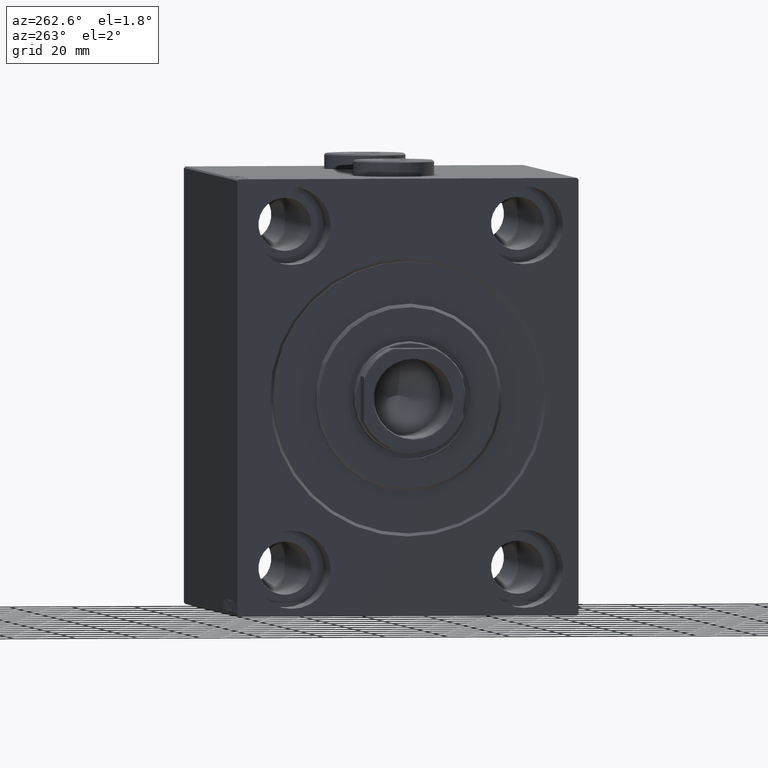
[diagram: clean part render]
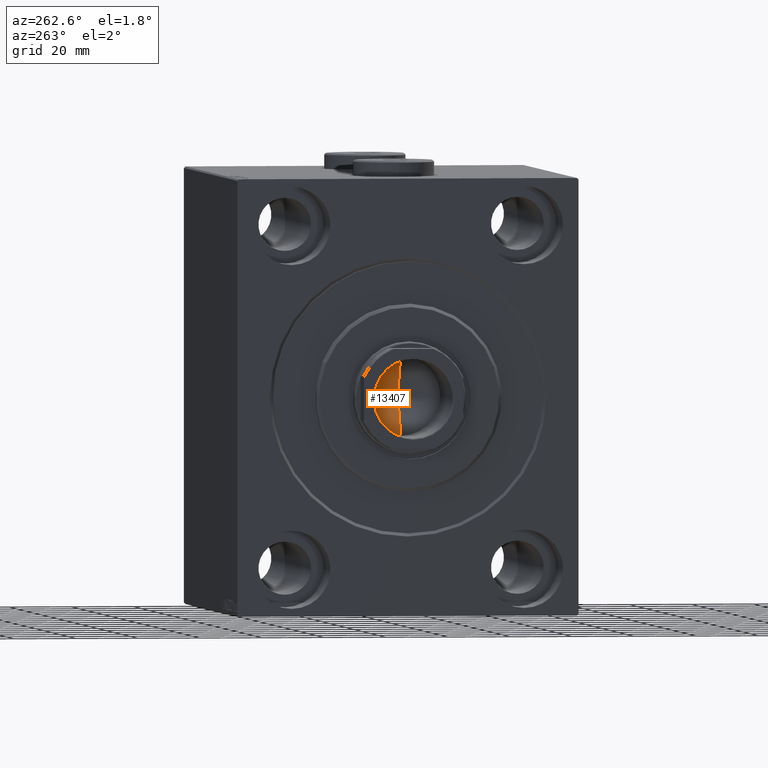
[diagram: same view with one face highlighted and labeled with its STEP entity id]
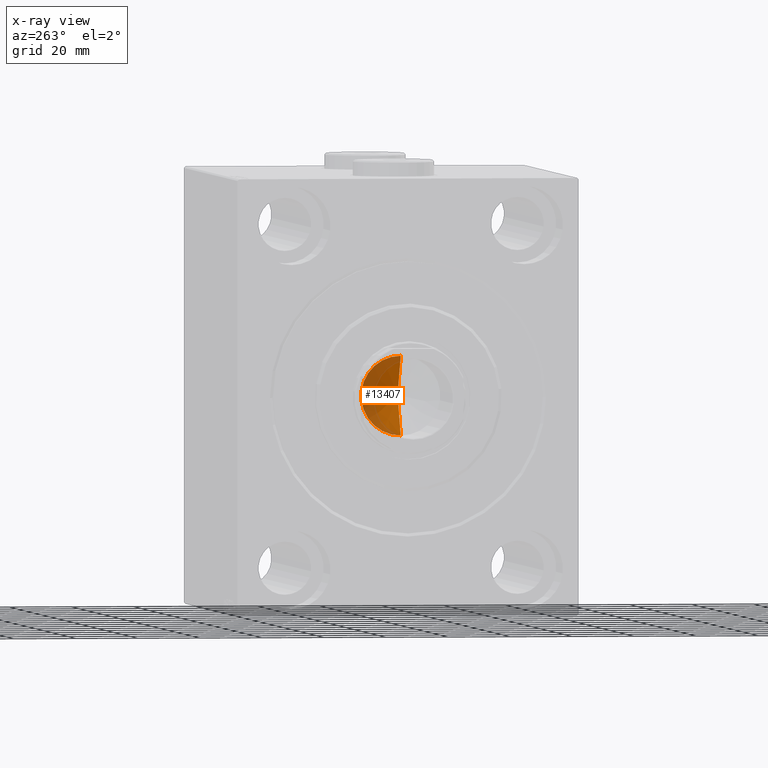
[diagram: x-ray of the same camera — body ghosted, the highlighted face saturated]
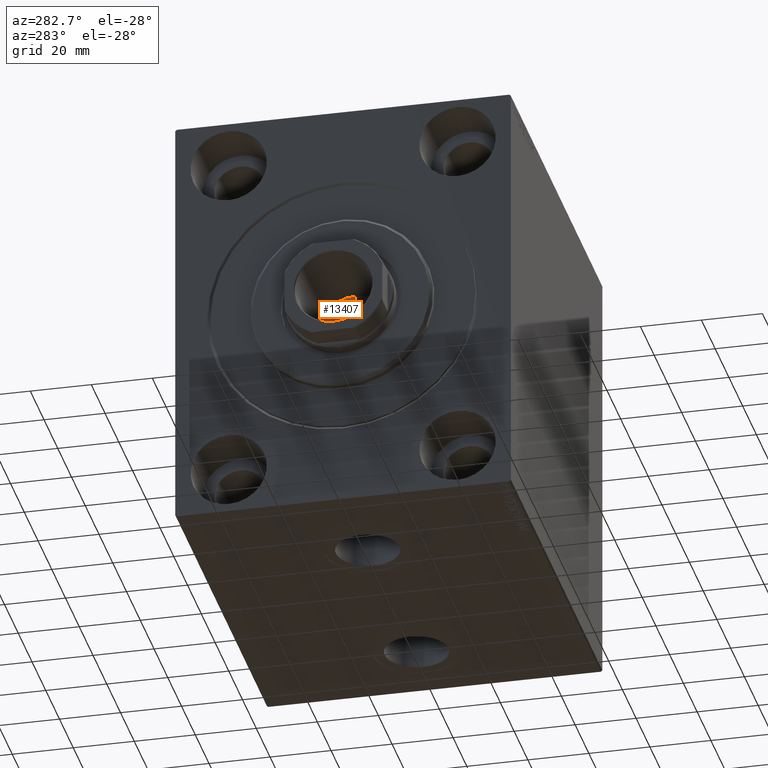
[diagram: same view with one face highlighted and labeled with its STEP entity id]
A machine part, auxiliary view. The second image highlights one B-rep face of the part: STEP entity #13407.
The next image is the same camera in x-ray: the body ghosted, the highlighted face saturated — about 43% of this face is hidden behind the body in this view.
A second angle (auxiliary view) of the same face is appended — the face is thin or edge-on in the first view.
In plain terms, the highlighted conical surface has half-angle 59 deg.
Its self-contained STEP definition (entity closure, byte-faithful):
#844 = ORIENTED_EDGE ( 'NONE', *, *, #37133, .T. ) ;
#972 = VERTEX_POINT ( 'NONE', #4394 ) ;
#4394 = CARTESIAN_POINT ( 'NONE',  ( -1.026246296720136938E-14, 0.000000000000000000, 86.33902710739860709 ) ) ;
#5783 = EDGE_CURVE ( 'NONE', #972, #37017, #37390, .T. ) ;
#5975 = CONICAL_SURFACE ( 'NONE', #35234, 12.74999999999999467, 1.029744258676653645 ) ;
#11021 = EDGE_CURVE ( 'NONE', #972, #33348, #31266, .T. ) ;
#12724 = CARTESIAN_POINT ( 'NONE',  ( 12.74999999999999467, 0.000000000000000000, 94.00000000000000000 ) ) ;
#13042 = DIRECTION ( 'NONE',  ( 1.000000000000000000, 0.000000000000000000, 0.000000000000000000 ) ) ;
#13407 = ADVANCED_FACE ( 'NONE', ( #18506 ), #5975, .F. ) ;
#16769 = CARTESIAN_POINT ( 'NONE',  ( -12.74999999999999467, 1.561424668912874519E-15, 94.00000000000000000 ) ) ;
#18488 = EDGE_LOOP ( 'NONE', ( #40738, #26946, #844 ) ) ;
#18506 = FACE_OUTER_BOUND ( 'NONE', #18488, .T. ) ;
#24171 = CARTESIAN_POINT ( 'NONE',  ( 12.74999999999999467, 0.000000000000000000, 94.00000000000000000 ) ) ;
#24482 = CARTESIAN_POINT ( 'NONE',  ( 0.000000000000000000, 0.000000000000000000, 94.00000000000000000 ) ) ;
#24701 = DIRECTION ( 'NONE',  ( -0.000000000000000000, -0.000000000000000000, 1.000000000000000000 ) ) ;
#24983 = VECTOR ( 'NONE', #38137, 1000.000000000000000 ) ;
#26485 = CIRCLE ( 'NONE', #35990, 12.74999999999999467 ) ;
#26946 = ORIENTED_EDGE ( 'NONE', *, *, #11021, .T. ) ;
#28592 = DIRECTION ( 'NONE',  ( 1.000000000000000000, 0.000000000000000000, 0.000000000000000000 ) ) ;
#31266 = LINE ( 'NONE', #24171, #24983 ) ;
#33348 = VERTEX_POINT ( 'NONE', #12724 ) ;
#33960 = DIRECTION ( 'NONE',  ( -0.8571673007021118895, 1.049727191138618079E-16, 0.5150380749100549327 ) ) ;
#35234 = AXIS2_PLACEMENT_3D ( 'NONE', #24482, #24701, #28592 ) ;
#35990 = AXIS2_PLACEMENT_3D ( 'NONE', #36877, #40766, #13042 ) ;
#36877 = CARTESIAN_POINT ( 'NONE',  ( 0.000000000000000000, 0.000000000000000000, 94.00000000000000000 ) ) ;
#37017 = VERTEX_POINT ( 'NONE', #39412 ) ;
#37133 = EDGE_CURVE ( 'NONE', #33348, #37017, #26485, .T. ) ;
#37390 = LINE ( 'NONE', #16769, #42470 ) ;
#38137 = DIRECTION ( 'NONE',  ( 0.8571673007021118895, 0.000000000000000000, 0.5150380749100549327 ) ) ;
#39412 = CARTESIAN_POINT ( 'NONE',  ( -12.74999999999999467, 1.561424668912874519E-15, 94.00000000000000000 ) ) ;
#40738 = ORIENTED_EDGE ( 'NONE', *, *, #5783, .F. ) ;
#40766 = DIRECTION ( 'NONE',  ( -0.000000000000000000, -0.000000000000000000, 1.000000000000000000 ) ) ;
#42470 = VECTOR ( 'NONE', #33960, 1000.000000000000000 ) ;